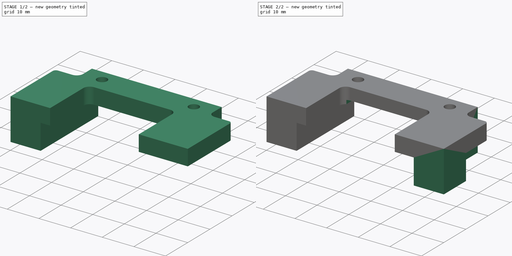
[diagram: build sequence overview — one tinted view per stage of 2, left to right]
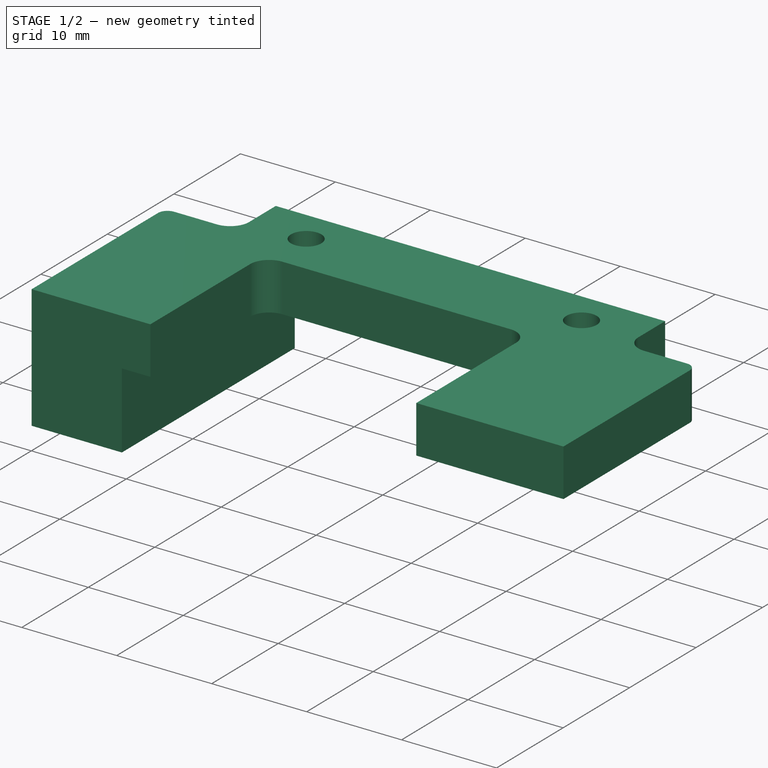
[diagram: stage 1 of 2 — iso view after this stage's code; geometry added in this stage tinted green]
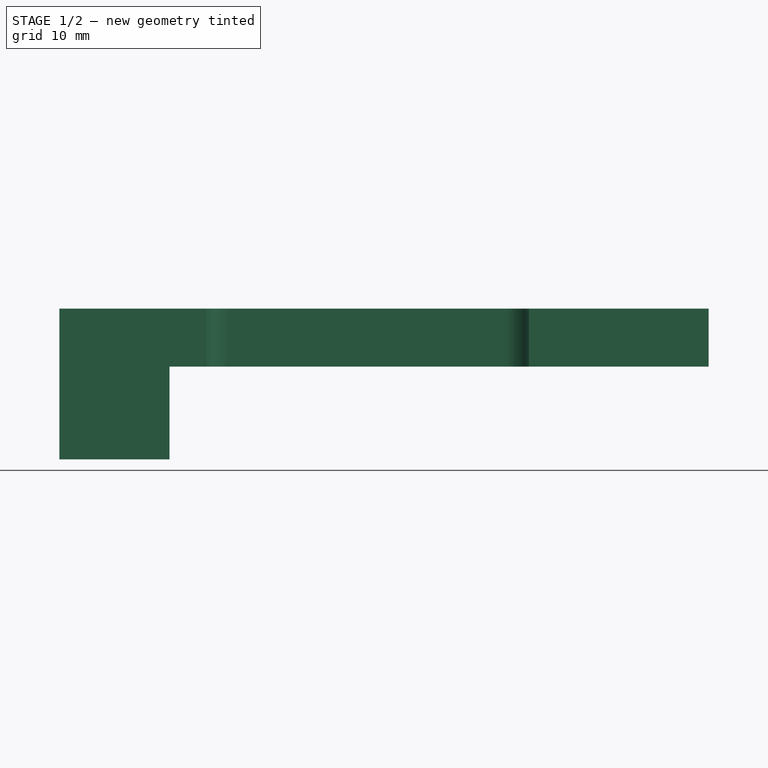
[diagram: stage 1 of 2 — front view after this stage's code; geometry added in this stage tinted green]
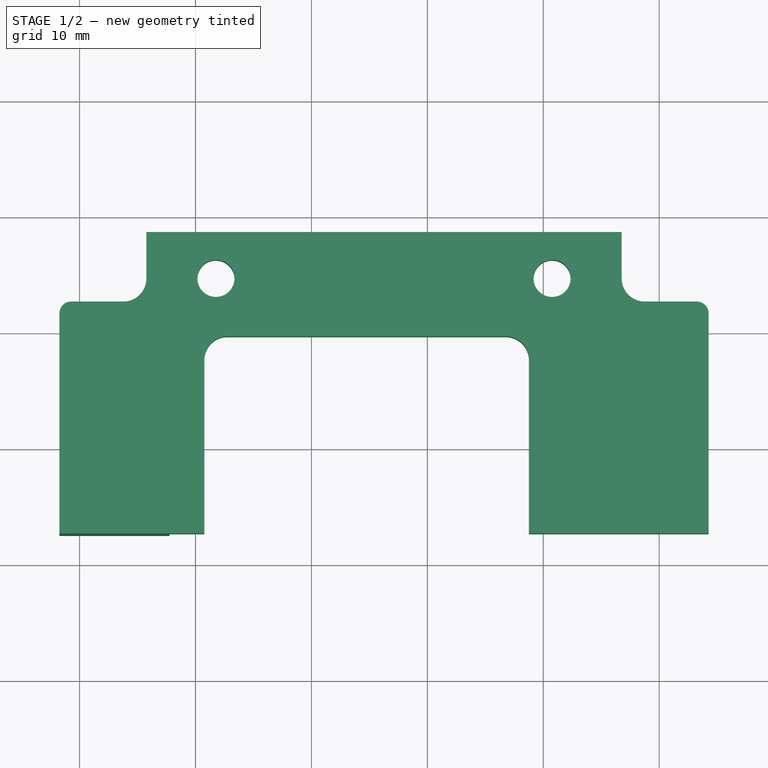
[diagram: stage 1 of 2 — top view after this stage's code; geometry added in this stage tinted green]
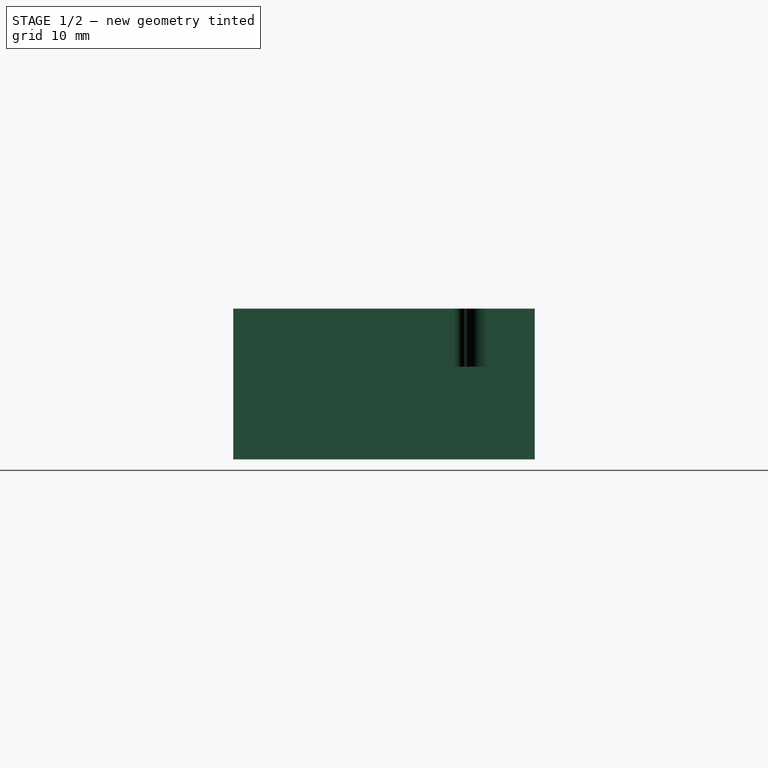
[diagram: stage 1 of 2 — right view after this stage's code; geometry added in this stage tinted green]
FCSTD DOCUMENT  (FreeCAD 1.0R39109 (Git))
Label: holder
License: All rights reserved
LicenseURL: https://en.wikipedia.org/wiki/All_rights_reserved
objects: Sketcher::SketchObject×3, PartDesign::Pad×3, PartDesign::Pocket×1, PartDesign::Body×1
note: 19 computed .brp shape members not serialized (recipe doc carries the construction recipe); baked Part::Feature solids carry a one-line shape summary decoded from their .brp

FEATURE [Sketcher::SketchObject] Sketch
  ArcFitTolerance = 1e-06
  FullyConstrained = true
  MakeInternals = false
  MapMode = 5
  Placement = pos=(-93.74,138.54,-1.6) rot=(1,0,0;3.14159rad)
  sketch-geometry (39):
    g0: LineSegment StartX=-15.5 StartY=26 StartZ=0 EndX=-15.5 EndY=11 EndZ=0
    g1: LineSegment StartX=-13.5 StartY=9 StartZ=0 EndX=10.5 EndY=9 EndZ=0
    g2: LineSegment StartX=12.5 StartY=11 StartZ=0 EndX=12.5 EndY=26 EndZ=0
    g3: ArcOfCircle CenterX=-13.5 CenterY=11 CenterZ=0 NormalX=0 NormalY=0 NormalZ=1 AngleXU=0 Radius=2 StartAngle=3.14159 EndAngle=4.71239
    g4: ArcOfCircle CenterX=10.5 CenterY=11 CenterZ=0 NormalX=0 NormalY=0 NormalZ=1 AngleXU=0 Radius=2 StartAngle=4.71239 EndAngle=6.28319
    g5: GeomPoint [constr] X=12.5 Y=9 Z=0
    g6: Circle CenterX=-14.5 CenterY=4 CenterZ=0 NormalX=0 NormalY=0 NormalZ=1 AngleXU=0 Radius=1.6
    g7: Circle CenterX=14.5 CenterY=4 CenterZ=0 NormalX=0 NormalY=0 NormalZ=1 AngleXU=0 Radius=1.6
    g8: LineSegment [constr] StartX=14.5 StartY=4 StartZ=0 EndX=28 EndY=4 EndZ=0
    g9: LineSegment [constr] StartX=-14.5 StartY=4 StartZ=0 EndX=-28 EndY=4 EndZ=0
    g10: LineSegment StartX=-18.5 StartY=26 StartZ=0 EndX=-18.5 EndY=0 EndZ=0
    g11: LineSegment StartX=18.5 StartY=26 StartZ=0 EndX=18.5 EndY=0 EndZ=0
    g12: LineSegment StartX=-28 StartY=16 StartZ=0 EndX=-22.5 EndY=16 EndZ=0
    g13: LineSegment StartX=28 StartY=16 StartZ=0 EndX=22.5 EndY=16 EndZ=0
    g14: LineSegment StartX=-27 StartY=6 StartZ=0 EndX=-22.5 EndY=6 EndZ=0
    g15: ArcOfCircle CenterX=-27 CenterY=7 CenterZ=0 NormalX=0 NormalY=0 NormalZ=1 AngleXU=0 Radius=1 StartAngle=3.14159 EndAngle=4.71239
    g16: LineSegment StartX=-20.5 StartY=0 StartZ=0 EndX=-20.5 EndY=4 EndZ=0
    g17: ArcOfCircle CenterX=-22.5 CenterY=4 CenterZ=0 NormalX=0 NormalY=0 NormalZ=1 AngleXU=0 Radius=2 StartAngle=0 EndAngle=1.5708
    g18: LineSegment StartX=27 StartY=6 StartZ=0 EndX=22.5 EndY=6 EndZ=0
    g19: LineSegment StartX=20.5 StartY=4 StartZ=0 EndX=20.5 EndY=0 EndZ=0
    g20: ArcOfCircle CenterX=22.5 CenterY=4 CenterZ=0 NormalX=0 NormalY=0 NormalZ=1 AngleXU=0 Radius=2 StartAngle=1.5708 EndAngle=3.14159
    g21: ArcOfCircle CenterX=27 CenterY=7 CenterZ=0 NormalX=0 NormalY=0 NormalZ=1 AngleXU=0 Radius=1 StartAngle=4.71239 EndAngle=6.28319
    g22: LineSegment StartX=-20.5 StartY=4 StartZ=0 EndX=-20.5 EndY=14 EndZ=0
    g23: LineSegment StartX=20.5 StartY=4 StartZ=0 EndX=20.5 EndY=14 EndZ=0
    g24: ArcOfCircle CenterX=-22.5 CenterY=14 CenterZ=0 NormalX=0 NormalY=0 NormalZ=1 AngleXU=0 Radius=2 StartAngle=0 EndAngle=1.5708
    g25: ArcOfCircle CenterX=22.5 CenterY=14 CenterZ=0 NormalX=0 NormalY=0 NormalZ=1 AngleXU=0 Radius=2 StartAngle=1.5708 EndAngle=3.14159
    g26: LineSegment [constr] StartX=-28 StartY=7 StartZ=0 EndX=-28 EndY=4 EndZ=0
    g27: LineSegment [constr] StartX=28 StartY=7 StartZ=0 EndX=28 EndY=4 EndZ=0
    g28: LineSegment StartX=-15.5 StartY=26 StartZ=0 EndX=-18.5 EndY=26 EndZ=0
    g29: LineSegment StartX=-18.5 StartY=26 StartZ=0 EndX=-28 EndY=26 EndZ=0
    g30: LineSegment StartX=28 StartY=26 StartZ=0 EndX=18.5 EndY=26 EndZ=0
    g31: LineSegment StartX=18.5 StartY=26 StartZ=0 EndX=12.5 EndY=26 EndZ=0
    g32: LineSegment StartX=-20.5 StartY=0 StartZ=0 EndX=-18.5 EndY=0 EndZ=0
    g33: LineSegment StartX=-18.5 StartY=0 StartZ=0 EndX=18.5 EndY=0 EndZ=0
    g34: LineSegment StartX=18.5 StartY=0 StartZ=0 EndX=20.5 EndY=0 EndZ=0
    g35: LineSegment StartX=-28 StartY=26 StartZ=0 EndX=-28 EndY=16 EndZ=0
    g36: LineSegment StartX=-28 StartY=16 StartZ=0 EndX=-28 EndY=7 EndZ=0
    g37: LineSegment StartX=28 StartY=7 StartZ=0 EndX=28 EndY=16 EndZ=0
    g38: LineSegment StartX=28 StartY=16 StartZ=0 EndX=28 EndY=26 EndZ=0
  constraints (114):
    c: Coincident(g38,g30)
    c: Coincident(g29,g35)
    c: Tangent(g0,g3) = -1.5708
    c: Tangent(g1,g3) = -1.5708
    c: Tangent(g1,g4) = -1.5708
    c: Tangent(g2,g4) = -1.5708
    c: Vertical(g0)
    c: Vertical(g2)
    c: Horizontal(g1)
    c: Equal(g3,g4)
    c: PointOnObject(g5,g1)
    c: PointOnObject(g5,g2)
    c: Radius(g3) = 2
    c: Diameter(g7) = 3.2
    c: Diameter(g6) = 3.2
    c: DistanceX(g6,g7) = 29
    c: Coincident(g8,g7)
    c: Horizontal(g8)
    c: Coincident(g31,g2)
    c: PointOnObject(g28,g0)
    c: Equal(g0,g2)
    c: Coincident(g9,g6)
    c: Horizontal(g9)
    c: Equal(g9,g8)
    c: Distance(g6,g1) = 5
    c: Distance(g0,g1) = 17
    c: Vertical(g10)
    c: Vertical(g11)
    c: DistanceX(g10,g11) = 37
    c: Distance(g6,g10) = 4
    c: Horizontal(g12)
    c: Horizontal(g13)
    c: Horizontal(g12,g13)
    c: Symmetric(g7,g6,g-2)
    c: PointOnObject(g10,g-1)
    c: DistanceX(g0,g2) = 28
    c: Horizontal(g14)
    c: Coincident(g15,g14)
    c: Vertical(g16)
    c: Coincident(g17,g14)
    c: Coincident(g17,g16)
    c: Vertical(g17,g14)
    c: Horizontal(g16,g17)
    c: Vertical(g15,g14)
    c: Horizontal(g15,g15)
    c: Horizontal(g18)
    c: Vertical(g19)
    c: Coincident(g20,g18)
    c: Coincident(g20,g19)
    c: Coincident(g21,g18)
    c: Horizontal(g20,g19)
    c: Vertical(g20,g18)
    c: Vertical(g21,g18)
    c: Horizontal(g21,g21)
    c: Distance(g16,g10) = 2
    c: Distance(g19,g11) = 2
    c: Horizontal(g14,g18)
    c: Radius(g17) = 2
    c: Radius(g20) = 2
    c: Radius(g15) = 1
    c: Radius(g21) = 1
    c: Coincident(g22,g16)
    c: Vertical(g22)
    c: Coincident(g24,g22)
    c: Coincident(g25,g23)
    c: Coincident(g25,g13)
    c: Coincident(g24,g12)
    c: Vertical(g24,g12)
    c: Horizontal(g22,g24)
    c: Equal(g24,g17)
    c: Horizontal(g25,g23)
    c: Vertical(g25,g13)
    c: Vertical(g23)
    c: Coincident(g19,g23)
    c: Equal(g25,g20)
    c: Horizontal(g16,g6)
    c: DistanceY(g1,g12) = 7
    c: Coincident(g32,g16)
    c: Coincident(g36,g15)
    c: Coincident(g34,g19)
    c: Coincident(g37,g21)
    c: Coincident(g26,g36)
    c: Coincident(g26,g9)
    c: Vertical(g26)
    c: Coincident(g27,g37)
    c: Vertical(g27)
    c: Coincident(g8,g27)
    c: DistanceX(g35,g38) = 56
    c: Coincident(g28,g29)
    c: PointOnObject(g0,g28)
    c: Horizontal(g28)
    c: Horizontal(g29)
    c: Coincident(g30,g31)
    c: Horizontal(g30)
    c: Horizontal(g31)
    c: Coincident(g32,g33)
    c: Horizontal(g32)
    c: Distance(g6,g32) = 4
    c: Coincident(g33,g34)
    c: Horizontal(g33)
    c: Horizontal(g34)
    c: Coincident(g28,g10)
    c: Coincident(g30,g11)
    c: Coincident(g32,g10)
    c: Coincident(g33,g11)
    c: DistanceX(g28,g28) = 3
    c: Coincident(g35,g36)
    c: Vertical(g35)
    c: Vertical(g36)
    c: Coincident(g37,g38)
    c: Vertical(g37)
    c: Vertical(g38)
    c: Coincident(g37,g13)
    c: Coincident(g35,g12)
FEATURE [PartDesign::Pad] Pad
  Direction = (0,-1e-16,-1)
  Length = 5
  Length2 = 10
  Placement = pos=(-93.74,138.54,-1.6) rot=(1,0,0;3.14159rad)
  Profile = -> Sketch [Edge9,Edge11,Edge12,Edge13,Edge14,Edge15,Edge16,Edge5,Edge26,Edge27,Edge4,Edge3,Edge2,Edge1,Edge31,Edge32,Edge24,Edge23,Edge22,Edge21,Edge19,Edge20,Edge18,Edge8,Edge33,Edge34]
  ReferenceAxis = -> Sketch [N_Axis]
  Refine = true
  Reversed = true
  Suppressed = false
  Type = 0
FEATURE [PartDesign::Pad] Pad001
  BaseFeature = -> Pad
  Direction = (0,-1e-16,-1)
  Length = 8
  Length2 = 10
  Placement = pos=(-93.74,138.54,-1.6) rot=(1,0,0;3.14159rad)
  Profile = -> Sketch [Edge10,Edge9,Edge8,Edge17,Edge7,Edge6,Edge15,Edge16]
  ReferenceAxis = -> Sketch [N_Axis]
  Refine = true
  Suppressed = false
  Type = 0
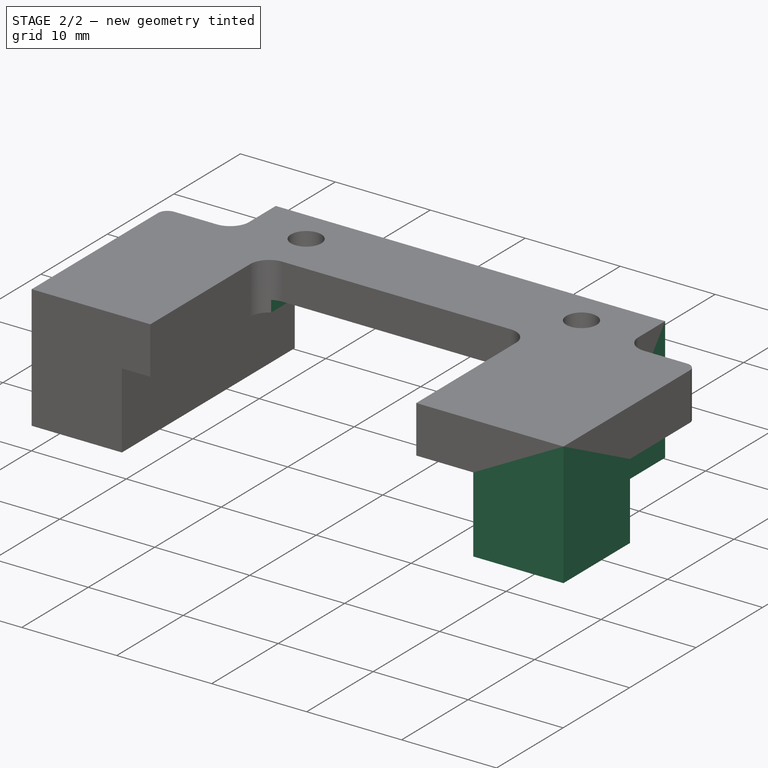
[diagram: stage 2 of 2 — iso view after this stage's code; geometry added in this stage tinted green]
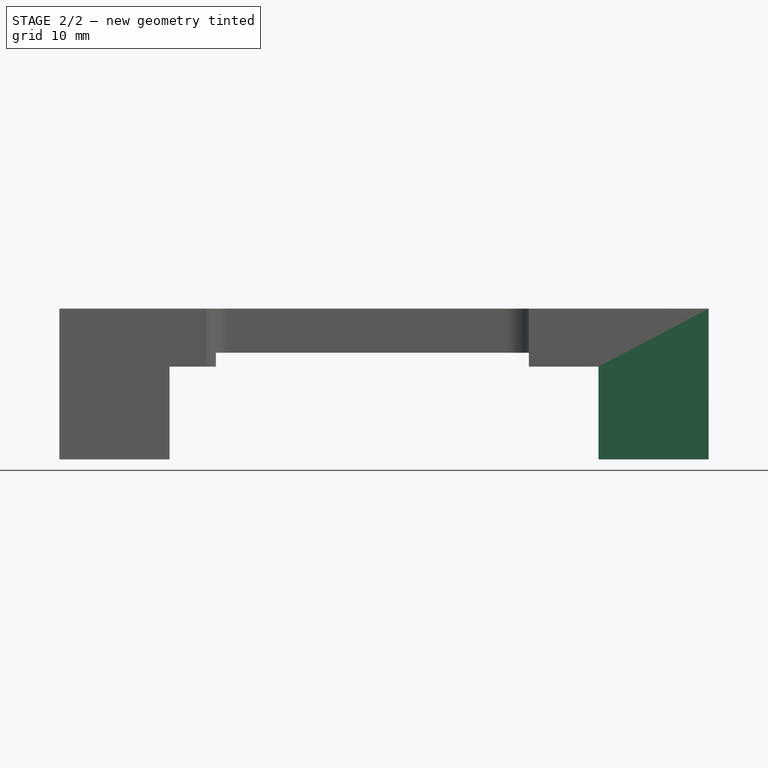
[diagram: stage 2 of 2 — front view after this stage's code; geometry added in this stage tinted green]
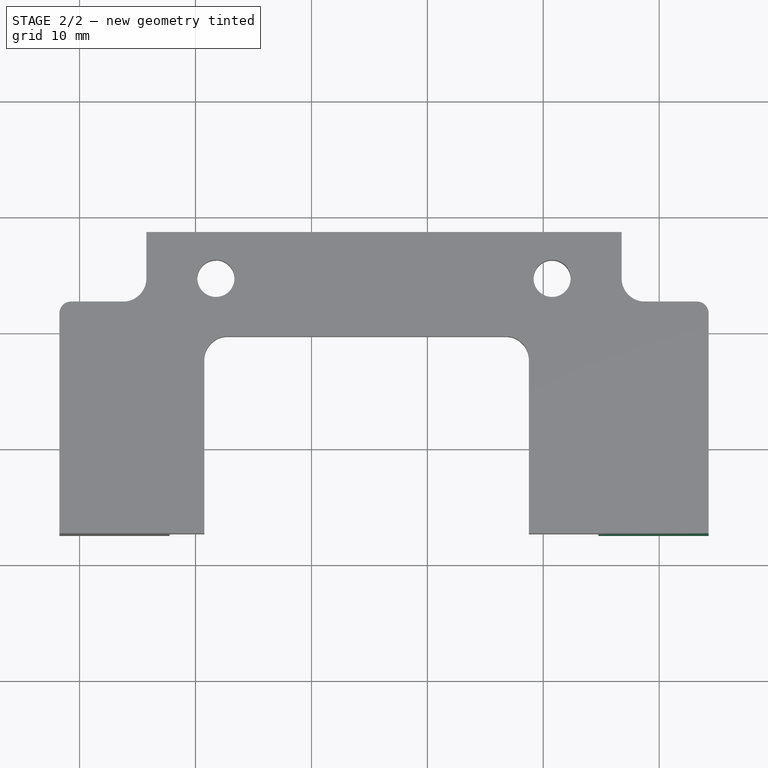
[diagram: stage 2 of 2 — top view after this stage's code; geometry added in this stage tinted green]
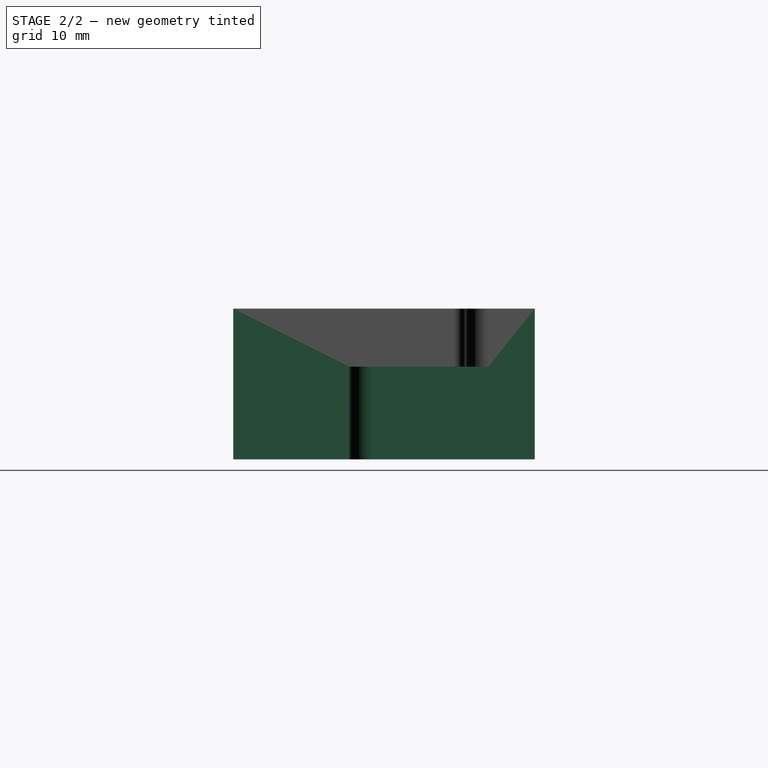
[diagram: stage 2 of 2 — right view after this stage's code; geometry added in this stage tinted green]
FEATURE [PartDesign::Pad] Pad002
  BaseFeature = -> Pad001
  Direction = (0,-1e-16,-1)
  Length = 8
  Length2 = 10
  Placement = pos=(-93.74,138.54,-1.6) rot=(1,0,0;3.14159rad)
  Profile = -> Sketch [Edge25,Edge26,Edge27,Edge28,Edge29,Edge30,Edge31,Edge32]
  ReferenceAxis = -> Sketch [N_Axis]
  Refine = true
  Suppressed = false
  Type = 0
FEATURE [Sketcher::SketchObject] Sketch001
  ArcFitTolerance = 1e-06
  FullyConstrained = true
  MakeInternals = false
FEATURE [Sketcher::SketchObject] Sketch002
  ArcFitTolerance = 1e-06
  AttachmentSupport = -> [Pad002]
  FullyConstrained = true
  MakeInternals = false
  MapMode = 5
  Placement = pos=(-93.74,138.54,-1.6) rot=(-1,0,0;1.5708rad)
  sketch-geometry (4):
    g0: LineSegment StartX=-14.5 StartY=0 StartZ=0 EndX=-14.5 EndY=-1.2 EndZ=0
    g1: LineSegment StartX=-14.5 StartY=-1.2 StartZ=0 EndX=12.5 EndY=-1.2 EndZ=0
    g2: LineSegment StartX=12.5 StartY=-1.2 StartZ=0 EndX=12.5 EndY=0 EndZ=0
    g3: LineSegment StartX=12.5 StartY=0 StartZ=0 EndX=-14.5 EndY=0 EndZ=0
  constraints (12):
    c: Coincident(g0,g1)
    c: Coincident(g1,g2)
    c: Coincident(g2,g3)
    c: Coincident(g3,g0)
    c: Vertical(g0)
    c: Vertical(g2)
    c: Horizontal(g1)
    c: Horizontal(g3)
    c: PointOnObject(g0,g-1)
    c: Distance(g0,g0) = 1.2
    c: DistanceX(g0,g-1) = 14.5
    c: Distance(g2,g-2) = 12.5
FEATURE [PartDesign::Pocket] Pocket
  BaseFeature = -> Pad002
  Direction = (0,-1,-2e-16)
  Length = 5
  Length2 = 5
  Placement = pos=(-93.74,138.54,-1.6) rot=(1,0,0;3.14159rad)
  Profile = -> Sketch002
  ReferenceAxis = -> Sketch002 [N_Axis]
  Refine = true
  Suppressed = false
  Type = 1
FEATURE [PartDesign::Body] Body001
  AllowCompound = false
  Group = -> [Sketch,Pad,Pad001,Pad002,Sketch001,Sketch002,Pocket]
  Origin = -> Origin001
  Placement = pos=(489,255,21) rot=(0,0,1;0rad)
  Tip = -> Pocket
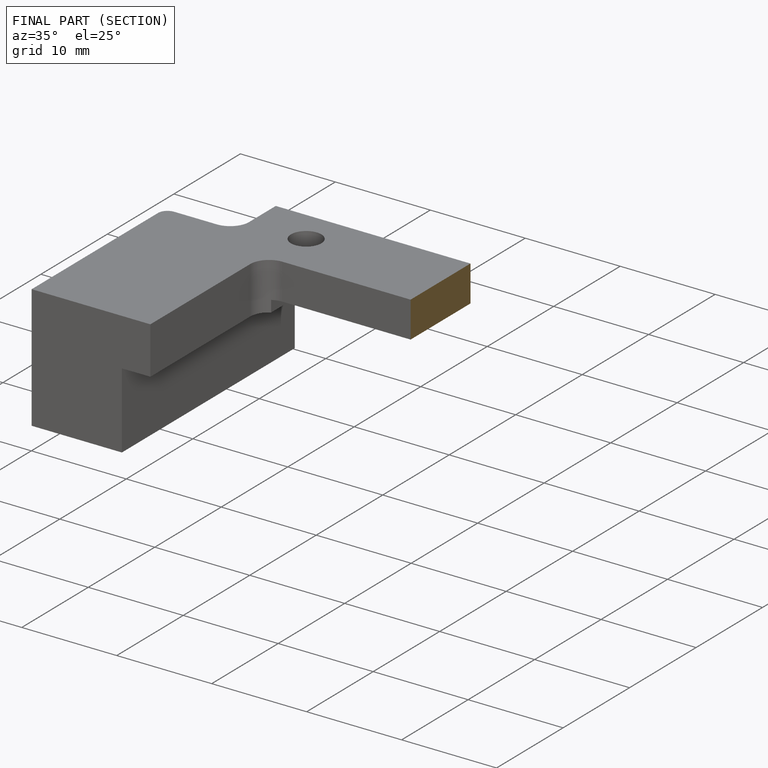
[diagram: finished part — half-section view (interior)]
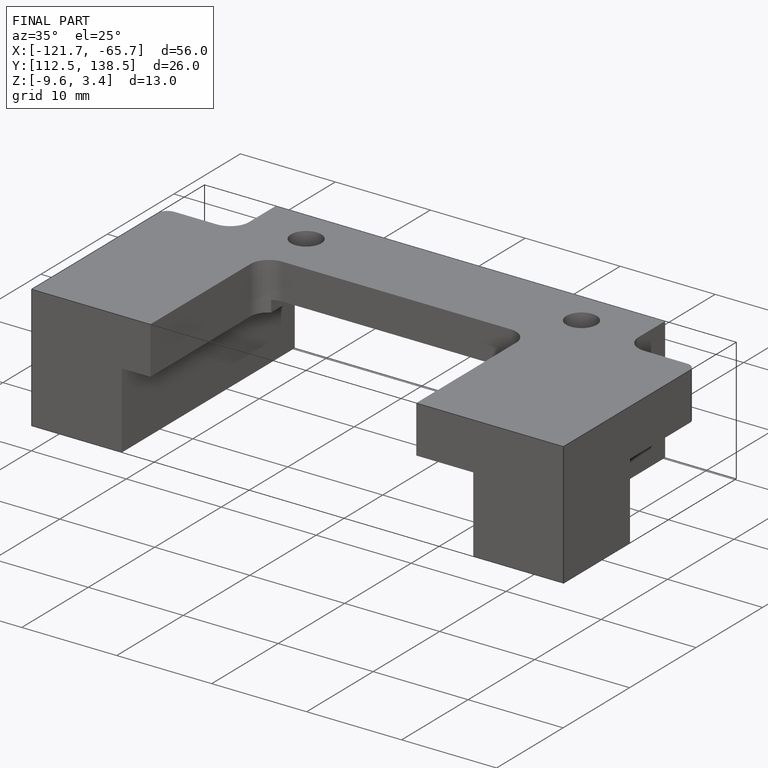
[diagram: finished part — iso view with bounding-box wireframe]
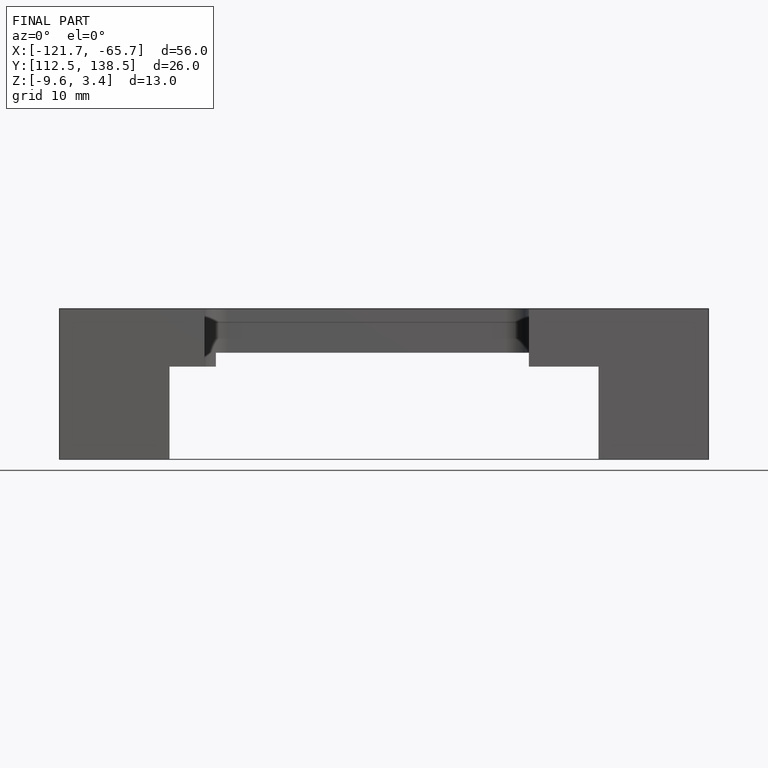
[diagram: finished part — front view with bounding-box wireframe]
